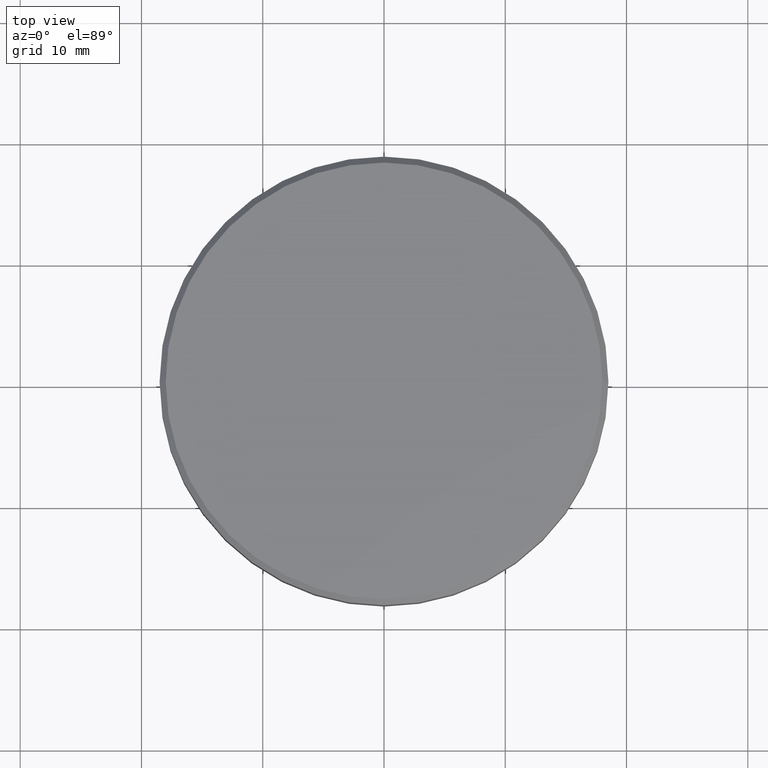
[diagram: clean part render]
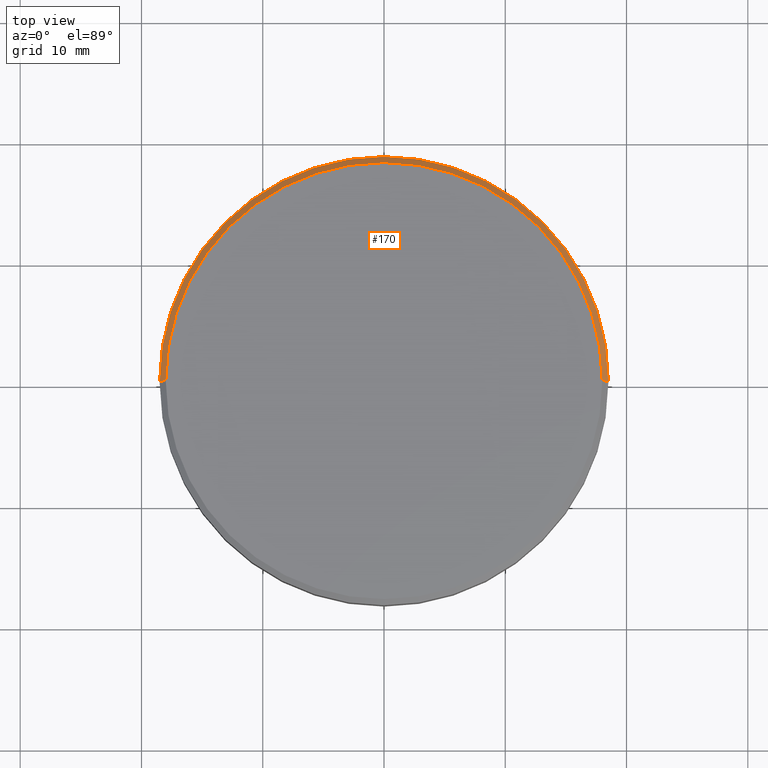
[diagram: same view with one face highlighted and labeled with its STEP entity id]
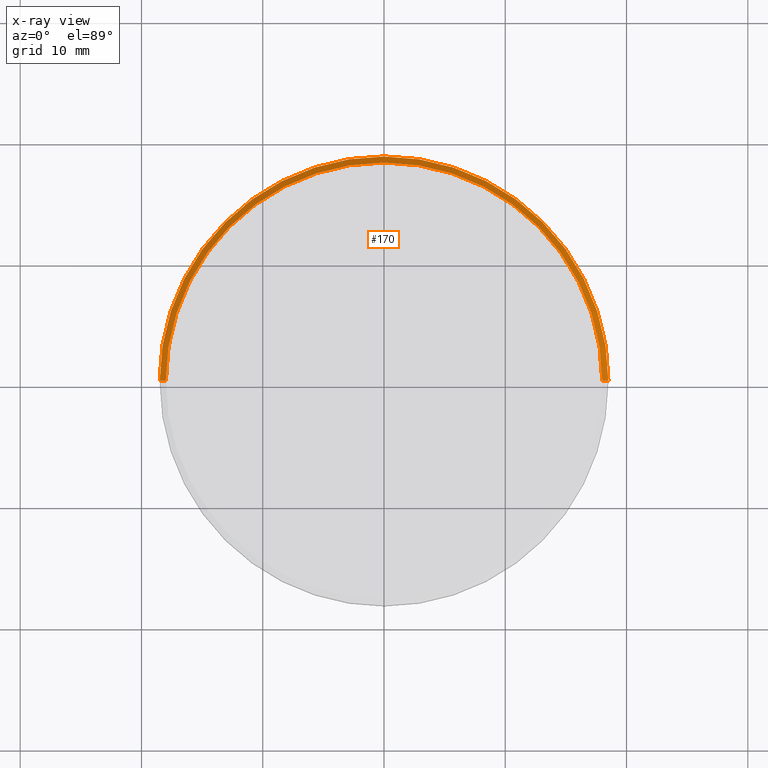
[diagram: x-ray of the same camera — body ghosted, the highlighted face saturated]
A machine part, top view. The second image highlights one B-rep face of the part: STEP entity #170.
The next image is the same camera in x-ray: the body ghosted, the highlighted face saturated — about 0% of this face is hidden behind the body in this view.
In plain terms, the highlighted conical surface has half-angle 45 deg.
Its self-contained STEP definition (entity closure, byte-faithful):
#2 = DIRECTION ( 'NONE',  ( 1.000000000000000000, 0.000000000000000000, 0.000000000000000000 ) ) ;
#5 = AXIS2_PLACEMENT_3D ( 'NONE', #55, #352, #62 ) ;
#16 = CIRCLE ( 'NONE', #5, 18.50000000000000000 ) ;
#24 = VERTEX_POINT ( 'NONE', #116 ) ;
#32 = LINE ( 'NONE', #203, #169 ) ;
#55 = CARTESIAN_POINT ( 'NONE',  ( 0.000000000000000000, 0.000000000000000000, -0.5000000000000004441 ) ) ;
#62 = DIRECTION ( 'NONE',  ( 1.000000000000000000, 0.000000000000000000, 0.000000000000000000 ) ) ;
#64 = AXIS2_PLACEMENT_3D ( 'NONE', #200, #99, #2 ) ;
#88 = ORIENTED_EDGE ( 'NONE', *, *, #152, .T. ) ;
#91 = VERTEX_POINT ( 'NONE', #112 ) ;
#99 = DIRECTION ( 'NONE',  ( -0.000000000000000000, -0.000000000000000000, 1.000000000000000000 ) ) ;
#104 = DIRECTION ( 'NONE',  ( -0.7071067811865401342, 0.000000000000000000, -0.7071067811865549002 ) ) ;
#112 = CARTESIAN_POINT ( 'NONE',  ( 18.50000000000000000, 0.000000000000000000, -0.5000000000000004441 ) ) ;
#116 = CARTESIAN_POINT ( 'NONE',  ( 18.00000000000001066, 2.234980408443920004E-15, 0.000000000000000000 ) ) ;
#121 = ORIENTED_EDGE ( 'NONE', *, *, #185, .F. ) ;
#131 = AXIS2_PLACEMENT_3D ( 'NONE', #387, #267, #299 ) ;
#136 = LINE ( 'NONE', #198, #174 ) ;
#152 = EDGE_CURVE ( 'NONE', #24, #91, #136, .T. ) ;
#155 = ORIENTED_EDGE ( 'NONE', *, *, #236, .F. ) ;
#169 = VECTOR ( 'NONE', #104, 1000.000000000000000 ) ;
#170 = ADVANCED_FACE ( 'NONE', ( #197 ), #313, .T. ) ;
#174 = VECTOR ( 'NONE', #234, 1000.000000000000000 ) ;
#185 = EDGE_CURVE ( 'NONE', #409, #91, #16, .T. ) ;
#197 = FACE_OUTER_BOUND ( 'NONE', #394, .T. ) ;
#198 = CARTESIAN_POINT ( 'NONE',  ( 18.00000000000001066, 2.204364238465237006E-15, 0.000000000000000000 ) ) ;
#200 = CARTESIAN_POINT ( 'NONE',  ( 0.000000000000000000, 0.000000000000000000, 0.000000000000000000 ) ) ;
#203 = CARTESIAN_POINT ( 'NONE',  ( -18.00000000000001066, 0.000000000000000000, 0.000000000000000000 ) ) ;
#209 = CARTESIAN_POINT ( 'NONE',  ( -18.50000000000000000, 2.265596578422603396E-15, -0.5000000000000004441 ) ) ;
#234 = DIRECTION ( 'NONE',  ( 0.7071067811865401342, 8.659560562354844111E-17, -0.7071067811865549002 ) ) ;
#236 = EDGE_CURVE ( 'NONE', #24, #265, #400, .T. ) ;
#265 = VERTEX_POINT ( 'NONE', #355 ) ;
#267 = DIRECTION ( 'NONE',  ( 0.000000000000000000, 0.000000000000000000, -1.000000000000000000 ) ) ;
#299 = DIRECTION ( 'NONE',  ( -1.000000000000000000, 0.000000000000000000, 0.000000000000000000 ) ) ;
#313 = CONICAL_SURFACE ( 'NONE', #131, 18.00000000000001066, 0.7853981633974378429 ) ;
#343 = ORIENTED_EDGE ( 'NONE', *, *, #365, .F. ) ;
#352 = DIRECTION ( 'NONE',  ( 0.000000000000000000, 0.000000000000000000, -1.000000000000000000 ) ) ;
#355 = CARTESIAN_POINT ( 'NONE',  ( -18.00000000000001066, 0.000000000000000000, 0.000000000000000000 ) ) ;
#365 = EDGE_CURVE ( 'NONE', #265, #409, #32, .T. ) ;
#387 = CARTESIAN_POINT ( 'NONE',  ( 0.000000000000000000, 0.000000000000000000, 0.000000000000000000 ) ) ;
#394 = EDGE_LOOP ( 'NONE', ( #155, #88, #121, #343 ) ) ;
#400 = CIRCLE ( 'NONE', #64, 18.00000000000001066 ) ;
#409 = VERTEX_POINT ( 'NONE', #209 ) ;